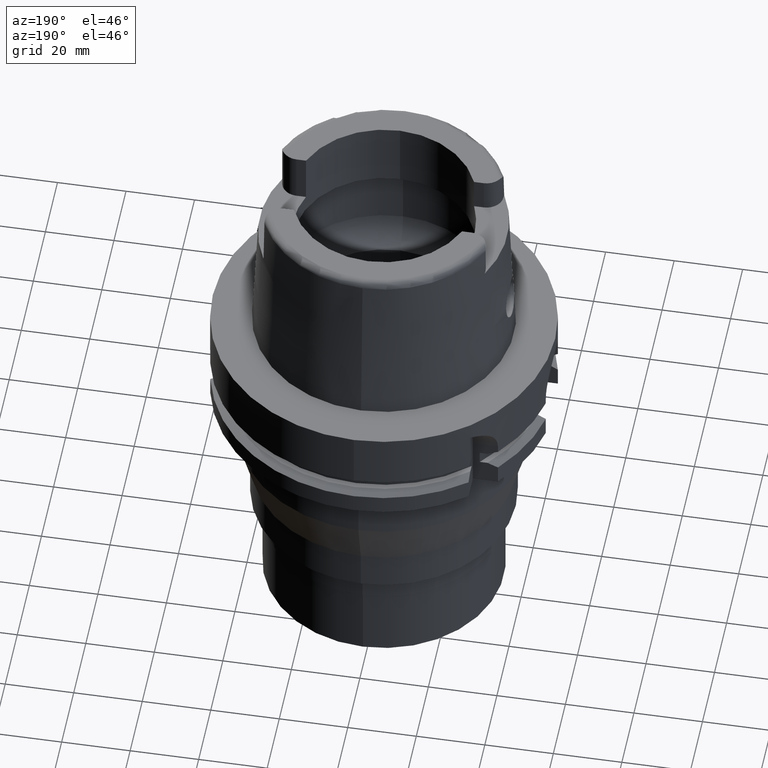
[diagram: clean part render]
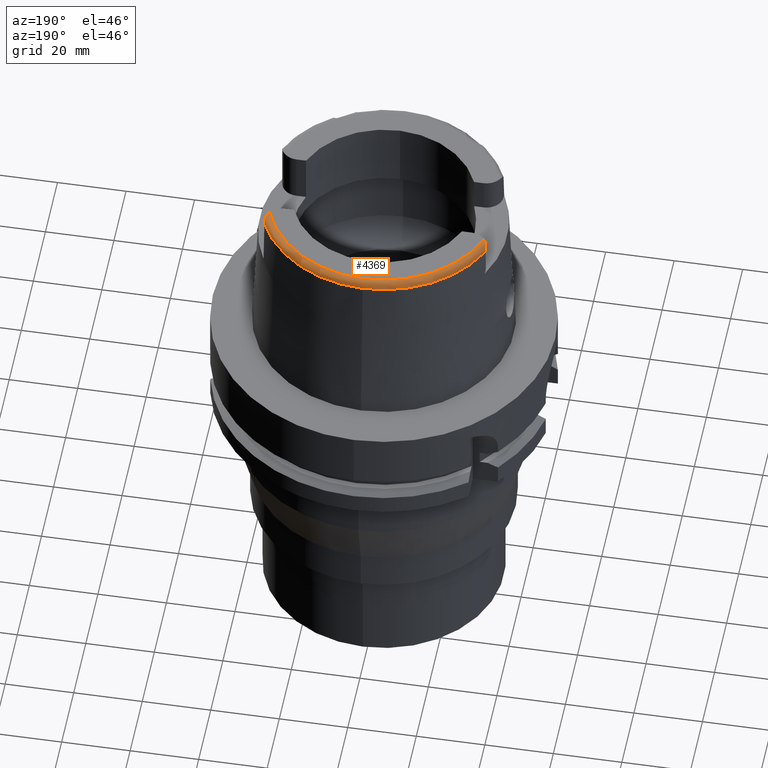
[diagram: same view with one face highlighted and labeled with its STEP entity id]
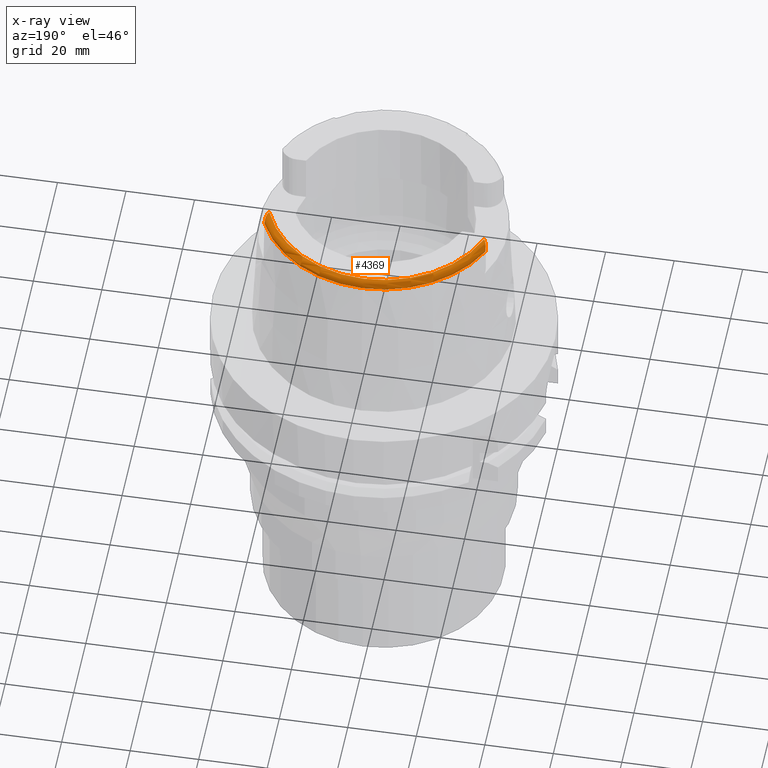
[diagram: x-ray of the same camera — body ghosted, the highlighted face saturated]
A machine part, auxiliary view. The second image highlights one B-rep face of the part: STEP entity #4369.
The next image is the same camera in x-ray: the body ghosted, the highlighted face saturated — about 0% of this face is hidden behind the body in this view.
In plain terms, the highlighted toroidal blend (fillet) surface has major radius 33.5974 mm and minor (blend) radius 2 mm.
Its self-contained STEP definition (entity closure, byte-faithful):
#26=CARTESIAN_POINT('',(0.E0,1.812477262738E-14,5.E1));
#27=DIRECTION('',(0.E0,0.E0,-1.E0));
#28=DIRECTION('',(-9.332215253018E-1,3.593015233942E-1,0.E0));
#29=AXIS2_PLACEMENT_3D('',#26,#27,#28);
#34=CARTESIAN_POINT('',(0.E0,1.812477262738E-14,5.E1));
#35=DIRECTION('',(0.E0,0.E0,-1.E0));
#36=DIRECTION('',(5.943840407718E-4,9.999998233538E-1,0.E0));
#37=AXIS2_PLACEMENT_3D('',#34,#35,#36);
#2266=CARTESIAN_POINT('',(-3.135385269249E1,1.207161079257E1,5.E1));
#2267=CARTESIAN_POINT('',(-3.142395127399E1,1.217069661859E1,5.E1));
#2268=CARTESIAN_POINT('',(-3.156423008864E1,1.238400831740E1,4.998522837193E1));
#2269=CARTESIAN_POINT('',(-3.177234884466E1,1.276869517443E1,4.990398284659E1));
#2270=CARTESIAN_POINT('',(-3.194497271212E1,1.317341974918E1,4.976699354944E1));
#2271=CARTESIAN_POINT('',(-3.207423331839E1,1.357211094266E1,4.958756384404E1));
#2272=CARTESIAN_POINT('',(-3.215882477513E1,1.393050703566E1,4.938859187E1));
#2273=CARTESIAN_POINT('',(-3.221029852144E1,1.424602436563E1,4.917927544846E1));
#2274=CARTESIAN_POINT('',(-3.223751823583E1,1.451375379522E1,4.896694448085E1));
#2275=CARTESIAN_POINT('',(-3.224877166983E1,1.473411272151E1,4.875250824238E1));
#2276=CARTESIAN_POINT('',(-3.225E1,1.484379078171E1,4.861425670921E1));
#2277=CARTESIAN_POINT('',(-3.225E1,1.489E1,4.854599893822E1));
#2282=CARTESIAN_POINT('',(-3.225E1,1.489E1,4.854599893822E1));
#2283=CARTESIAN_POINT('',(-3.225E1,1.492402447423E1,4.849573981556E1));
#2284=CARTESIAN_POINT('',(-3.224999932242E1,1.498176887420E1,4.839532655647E1));
#2285=CARTESIAN_POINT('',(-3.225000237151E1,1.503946982043E1,4.824399647094E1));
#2286=CARTESIAN_POINT('',(-3.224999491818E1,1.505884083352E1,4.814750368827E1));
#2287=CARTESIAN_POINT('',(-3.224999491818E1,1.506448545071E1,4.809972712783E1));
#2292=CARTESIAN_POINT('',(0.E0,1.812477262738E-14,4.809987853799E1));
#2293=DIRECTION('',(0.E0,0.E0,-1.E0));
#2294=DIRECTION('',(-9.060271525277E-1,4.232195634449E-1,0.E0));
#2295=AXIS2_PLACEMENT_3D('',#2292,#2293,#2294);
#2300=CARTESIAN_POINT('',(0.E0,1.812477262738E-14,4.809987853799E1));
#2301=DIRECTION('',(0.E0,0.E0,-1.E0));
#2302=DIRECTION('',(0.E0,1.E0,0.E0));
#2303=AXIS2_PLACEMENT_3D('',#2300,#2301,#2302);
#2308=CARTESIAN_POINT('',(0.E0,1.812477262738E-14,4.809987853799E1));
#2309=DIRECTION('',(0.E0,0.E0,-1.E0));
#2310=DIRECTION('',(5.943840407716E-4,9.999998233538E-1,0.E0));
#2311=AXIS2_PLACEMENT_3D('',#2308,#2309,#2310);
#2316=CARTESIAN_POINT('',(3.225000552017E1,1.506439888238E1,4.810003662091E1));
#2317=CARTESIAN_POINT('',(3.225000552017E1,1.505850172160E1,4.814995073358E1));
#2318=CARTESIAN_POINT('',(3.224999742392E1,1.503784908479E1,4.825002444444E1));
#2319=CARTESIAN_POINT('',(3.225000073602E1,1.497916656867E1,4.840031826848E1));
#2320=CARTESIAN_POINT('',(3.225E1,1.492267268251E1,4.849773660956E1));
#2321=CARTESIAN_POINT('',(3.225E1,1.489E1,4.854599893822E1));
#2326=CARTESIAN_POINT('',(3.225E1,1.489E1,4.854599893822E1));
#2327=CARTESIAN_POINT('',(3.225E1,1.484317351688E1,4.861516849960E1));
#2328=CARTESIAN_POINT('',(3.224872748194E1,1.473236005011E1,4.875445417009E1));
#2329=CARTESIAN_POINT('',(3.223737545708E1,1.451207112125E1,4.896834520719E1));
#2330=CARTESIAN_POINT('',(3.221019365258E1,1.424540539159E1,4.917967511651E1));
#2331=CARTESIAN_POINT('',(3.215884377650E1,1.393063773198E1,4.938850484995E1));
#2332=CARTESIAN_POINT('',(3.207417837927E1,1.357179245983E1,4.958776337039E1));
#2333=CARTESIAN_POINT('',(3.194448793394E1,1.317213261915E1,4.976749822741E1));
#2334=CARTESIAN_POINT('',(3.177214511283E1,1.276831928512E1,4.990406300066E1));
#2335=CARTESIAN_POINT('',(3.156399214127E1,1.238360766705E1,4.998528735736E1));
#2336=CARTESIAN_POINT('',(3.142386109156E1,1.217056914382E1,5.E1));
#2337=CARTESIAN_POINT('',(3.135385269249E1,1.207161079257E1,5.E1));
#2363=CARTESIAN_POINT('',(-3.135385269249E1,1.207161079257E1,5.E1));
#2365=VERTEX_POINT('',#2363);
#2366=CARTESIAN_POINT('',(1.996978118469E-2,3.359743244650E1,5.E1));
#2367=CARTESIAN_POINT('',(3.135385269249E1,1.207161079257E1,5.E1));
#2368=VERTEX_POINT('',#2366);
#2369=VERTEX_POINT('',#2367);
#2398=CARTESIAN_POINT('',(-3.225E1,1.489E1,4.854599893822E1));
#2399=VERTEX_POINT('',#2398);
#2417=VERTEX_POINT('',#2287);
#2418=CARTESIAN_POINT('',(0.E0,3.559494289391E1,4.809987853799E1));
#2419=VERTEX_POINT('',#2418);
#2420=CARTESIAN_POINT('',(2.115706598832E-2,3.559493660620E1,4.809987853799E1));
#2421=CARTESIAN_POINT('',(3.225001656051E1,1.506440810212E1,4.809987853799E1));
#2422=VERTEX_POINT('',#2420);
#2423=VERTEX_POINT('',#2421);
#2424=VERTEX_POINT('',#2321);
#4351=CARTESIAN_POINT('',(0.E0,1.812477262738E-14,4.8E1));
#4352=DIRECTION('',(0.E0,0.E0,-1.E0));
#4353=DIRECTION('',(-5.943840407722E-4,-9.999998233538E-1,0.E0));
#4354=AXIS2_PLACEMENT_3D('',#4351,#4352,#4353);
#4355=TOROIDAL_SURFACE('',#4354,3.359743838136E1,2.E0);
#4356=ORIENTED_EDGE('',*,*,#2746,.T.);
#4358=ORIENTED_EDGE('',*,*,#4357,.T.);
#4359=ORIENTED_EDGE('',*,*,#2910,.T.);
#4360=ORIENTED_EDGE('',*,*,#2934,.T.);
#4361=ORIENTED_EDGE('',*,*,#2932,.T.);
#4363=ORIENTED_EDGE('',*,*,#4362,.T.);
#4364=ORIENTED_EDGE('',*,*,#4342,.T.);
#4365=ORIENTED_EDGE('',*,*,#2719,.F.);
#4366=ORIENTED_EDGE('',*,*,#2717,.F.);
#4367=EDGE_LOOP('',(#4356,#4358,#4359,#4360,#4361,#4363,#4364,#4365,#4366));
#4368=FACE_OUTER_BOUND('',#4367,.F.);
#30=CIRCLE('',#29,3.359743838136E1);
#38=CIRCLE('',#37,3.359743838136E1);
#2278=B_SPLINE_CURVE_WITH_KNOTS('',3,(#2266,#2267,#2268,#2269,#2270,#2271,#2272,
#2273,#2274,#2275,#2276,#2277),.UNSPECIFIED.,.F.,.F.,(4,1,1,1,1,1,1,1,1,4),
(0.E0,1.111111111111E-1,2.222222222222E-1,3.333333333333E-1,4.444444444444E-1,
5.555555555556E-1,6.666666666667E-1,7.777777777778E-1,8.888888888889E-1,1.E0),
.UNSPECIFIED.);
#2288=B_SPLINE_CURVE_WITH_KNOTS('',3,(#2282,#2283,#2284,#2285,#2286,#2287),
.UNSPECIFIED.,.F.,.F.,(4,1,1,4),(0.E0,3.333333333333E-1,6.666666666667E-1,1.E0),
.UNSPECIFIED.);
#2296=CIRCLE('',#2295,3.559494289391E1);
#2304=CIRCLE('',#2303,3.559494289391E1);
#2312=CIRCLE('',#2311,3.559494289391E1);
#2322=B_SPLINE_CURVE_WITH_KNOTS('',3,(#2316,#2317,#2318,#2319,#2320,#2321),
.UNSPECIFIED.,.F.,.F.,(4,1,1,4),(0.E0,3.333333333333E-1,6.666666666667E-1,1.E0),
.UNSPECIFIED.);
#2338=B_SPLINE_CURVE_WITH_KNOTS('',3,(#2326,#2327,#2328,#2329,#2330,#2331,#2332,
#2333,#2334,#2335,#2336,#2337),.UNSPECIFIED.,.F.,.F.,(4,1,1,1,1,1,1,1,1,4),
(0.E0,1.111111111111E-1,2.222222222222E-1,3.333333333333E-1,4.444444444444E-1,
5.555555555556E-1,6.666666666667E-1,7.777777777778E-1,8.888888888889E-1,1.E0),
.UNSPECIFIED.);
#2717=EDGE_CURVE('',#2365,#2368,#30,.T.);
#2719=EDGE_CURVE('',#2368,#2369,#38,.T.);
#2746=EDGE_CURVE('',#2365,#2399,#2278,.T.);
#2910=EDGE_CURVE('',#2417,#2419,#2296,.T.);
#2932=EDGE_CURVE('',#2422,#2423,#2312,.T.);
#2934=EDGE_CURVE('',#2419,#2422,#2304,.T.);
#4342=EDGE_CURVE('',#2424,#2369,#2338,.T.);
#4357=EDGE_CURVE('',#2399,#2417,#2288,.T.);
#4362=EDGE_CURVE('',#2423,#2424,#2322,.T.);
#4369=ADVANCED_FACE('',(#4368),#4355,.T.);